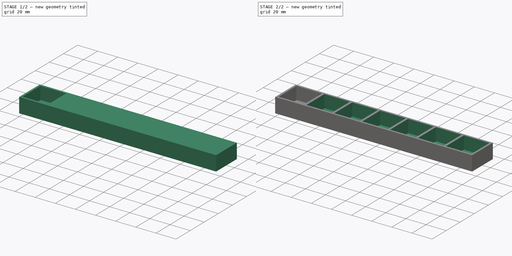
[diagram: build sequence overview — one tinted view per stage of 2, left to right]
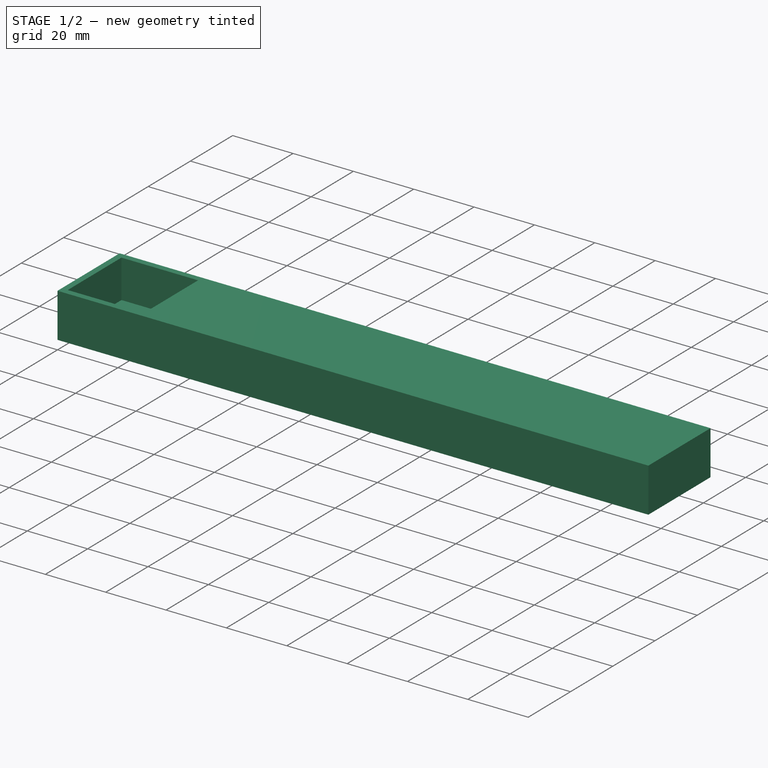
[diagram: stage 1 of 2 — iso view after this stage's code; geometry added in this stage tinted green]
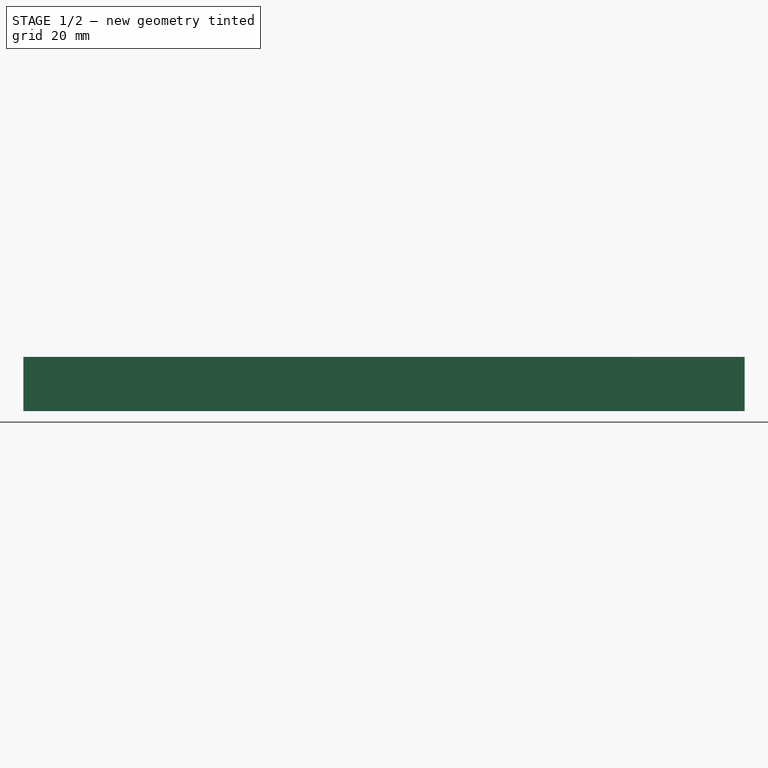
[diagram: stage 1 of 2 — front view after this stage's code; geometry added in this stage tinted green]
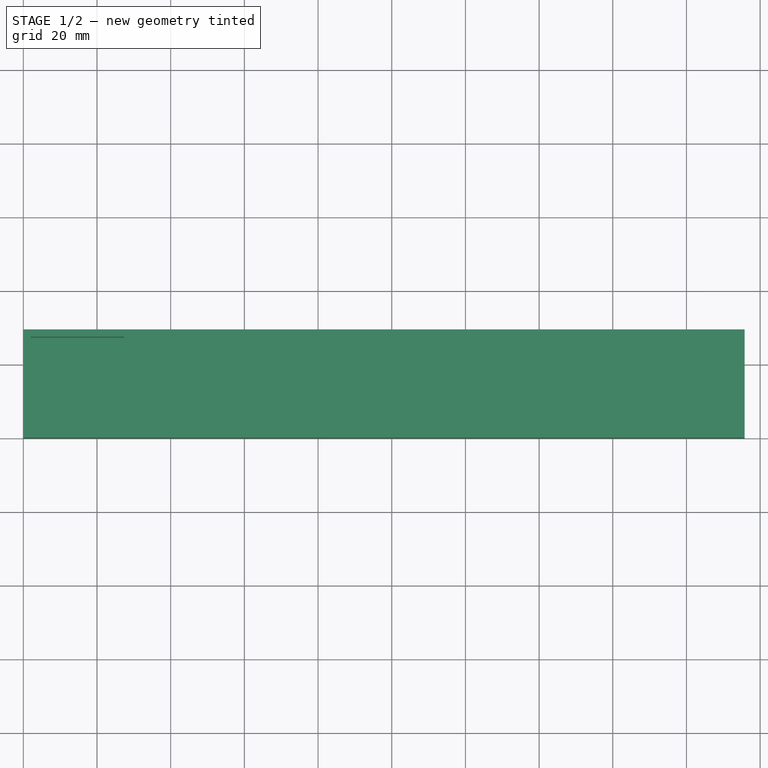
[diagram: stage 1 of 2 — top view after this stage's code; geometry added in this stage tinted green]
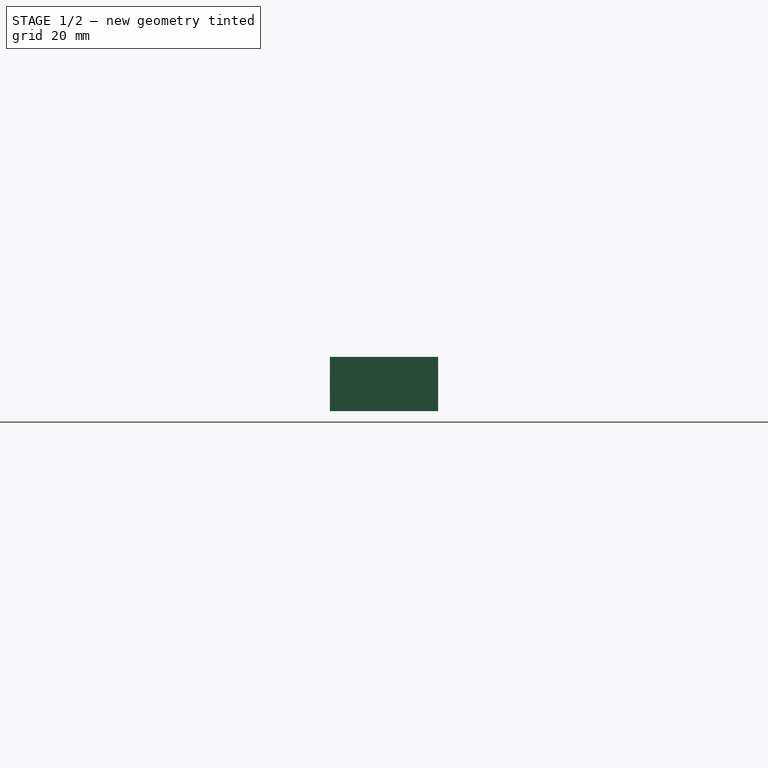
[diagram: stage 1 of 2 — right view after this stage's code; geometry added in this stage tinted green]
FCSTD DOCUMENT  (FreeCAD 2021.0301R23964 +3306 (Git))
Label: weekly_tray
License: All rights reserved
LicenseURL: http://en.wikipedia.org/wiki/All_rights_reserved
objects: Sketcher::SketchObject×2, Spreadsheet::Sheet×1, PartDesign::Pad×1, PartDesign::Pocket×1, PartDesign::LinearPattern×1, PartDesign::Body×1
note: 11 computed .brp shape members not serialized (recipe doc carries the construction recipe); baked Part::Feature solids carry a one-line shape summary decoded from their .brp

FEATURE [Spreadsheet::Sheet] Spreadsheet  label="wt_parameters"
  PythonMode = false
  cells = A1=depression qty; B1(dep_qty)=7; A2=depression depth; B2(dep_dep)==25.4 / 2; A3=depression width; B3(dep_wid)=25.4; A4=depression length; B4(dep_len)=25.4; A6=floor thick; B6(flo_thi)=2; A8=depression betweens; B8(dep_bet)=2; A9=depression perimeter; B9(dep_per)=2; A12=support for taper?; A14=total width; B14(tot_wid)==dep_per * 2 + dep_bet * dep_qty + dep_qty * dep_wid; C14='; A15=total length; B15(tot_len)==dep_per * 2 + dep_len; A16=total spread; B16(tot_spr)==dep_per + dep_bet * (dep_qty - 1) + (dep_qty - 1) * dep_wid
FEATURE [Sketcher::SketchObject] Sketch  label="perimeter"
  FullyConstrained = true
  MapMode = 5
  Support = -> [XY_Plane]
  expr: Constraints[8] = <<wt_parameters>>.tot_len
  expr: Constraints[9] = <<wt_parameters>>.tot_wid
  sketch-geometry (4):
    g0: LineSegment StartX=0 StartY=29.4 StartZ=0 EndX=195.8 EndY=29.4 EndZ=0
    g1: LineSegment StartX=195.8 StartY=29.4 StartZ=0 EndX=195.8 EndY=0 EndZ=0
    g2: LineSegment StartX=195.8 StartY=0 StartZ=0 EndX=0 EndY=0 EndZ=0
    g3: LineSegment StartX=0 StartY=0 StartZ=0 EndX=0 EndY=29.4 EndZ=0
  constraints (11):
    c: Coincident(g0,g1)
    c: Coincident(g1,g2)
    c: Coincident(g2,g3)
    c: Coincident(g3,g0)
    c: Horizontal(g0)
    c: Horizontal(g2)
    c: Vertical(g1)
    c: Vertical(g3)
    c: DistanceY(g3,g3) = 29.4
    c: DistanceX(g0,g0) = 195.8
    c: Coincident(g2,g-1)
FEATURE [Sketcher::SketchObject] Sketch001
  AttachmentOffset = pos=(0,0,14.7) rot=(0,0,1;0rad)
  FullyConstrained = true
  MapMode = 5
  Placement = pos=(0,0,14.7) rot=(0,0,1;0rad)
  Support = -> [XY_Plane]
  expr: .AttachmentOffset.Base.z = <<wt_parameters>>.dep_dep + <<wt_parameters>>.flo_thi
  expr: Constraints[10] = <<wt_parameters>>.dep_per
  expr: Constraints[11] = <<wt_parameters>>.dep_per
  expr: Constraints[8] = <<wt_parameters>>.dep_len
  expr: Constraints[9] = <<wt_parameters>>.dep_wid
  sketch-geometry (4):
    g0: LineSegment StartX=2 StartY=27.4 StartZ=0 EndX=27.4 EndY=27.4 EndZ=0
    g1: LineSegment StartX=27.4 StartY=27.4 StartZ=0 EndX=27.4 EndY=2 EndZ=0
    g2: LineSegment StartX=27.4 StartY=2 StartZ=0 EndX=2 EndY=2 EndZ=0
    g3: LineSegment StartX=2 StartY=2 StartZ=0 EndX=2 EndY=27.4 EndZ=0
  constraints (12):
    c: Coincident(g0,g1)
    c: Coincident(g1,g2)
    c: Coincident(g2,g3)
    c: Coincident(g3,g0)
    c: Horizontal(g0)
    c: Horizontal(g2)
    c: Vertical(g1)
    c: Vertical(g3)
    c: DistanceY(g3,g3) = 25.4
    c: DistanceX(g0,g0) = 25.4
    c: DistanceX(g-1,g2) = 2
    c: DistanceY(g-1,g2) = 2
FEATURE [PartDesign::Pad] Pad
  ClaimChildren = false
  Direction = (1,1,1)
  Fit = 0
  FitJoin = 0
  InnerFit = 0
  InnerFitJoin = 0
  InnerTaperAngle = 0
  InnerTaperAngleRev = 0
  Length = 14.7
  Length2 = 100
  NewSolid = false
  Profile = -> Sketch
  Suppress = false
  Type = 0
  expr: Length = <<wt_parameters>>.dep_dep + <<wt_parameters>>.flo_thi
FEATURE [PartDesign::Pocket] Pocket
  BaseFeature = -> Pad
  ClaimChildren = false
  Fit = 0
  FitJoin = 0
  InnerFit = 0
  InnerFitJoin = 0
  InnerTaperAngle = 0
  InnerTaperAngleRev = 0
  Length = 12.7
  Length2 = 100
  NewSolid = false
  Profile = -> Sketch001
  Suppress = false
  Type = 0
  expr: Length = <<wt_parameters>>.dep_dep
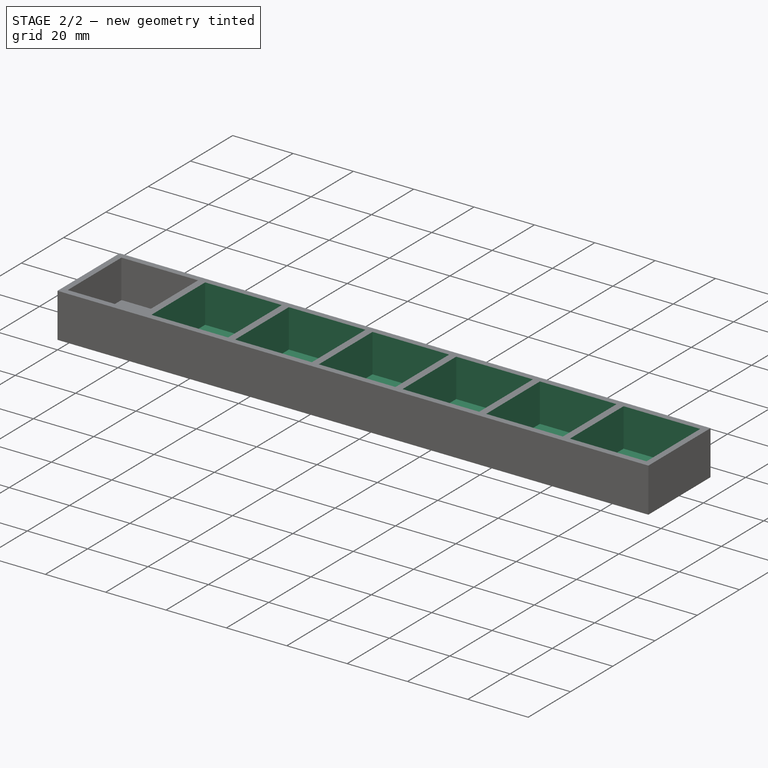
[diagram: stage 2 of 2 — iso view after this stage's code; geometry added in this stage tinted green]
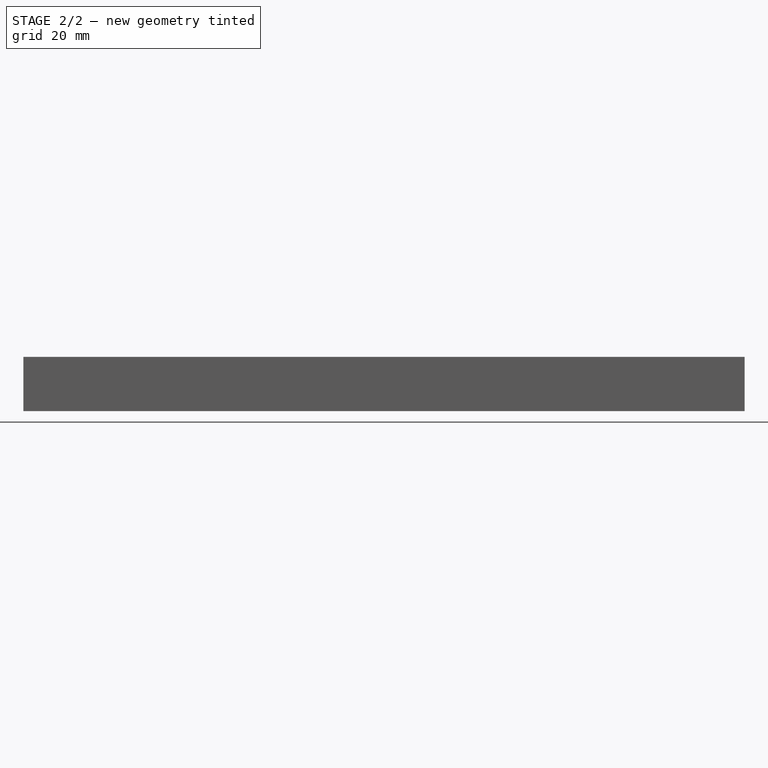
[diagram: stage 2 of 2 — front view after this stage's code; geometry added in this stage tinted green]
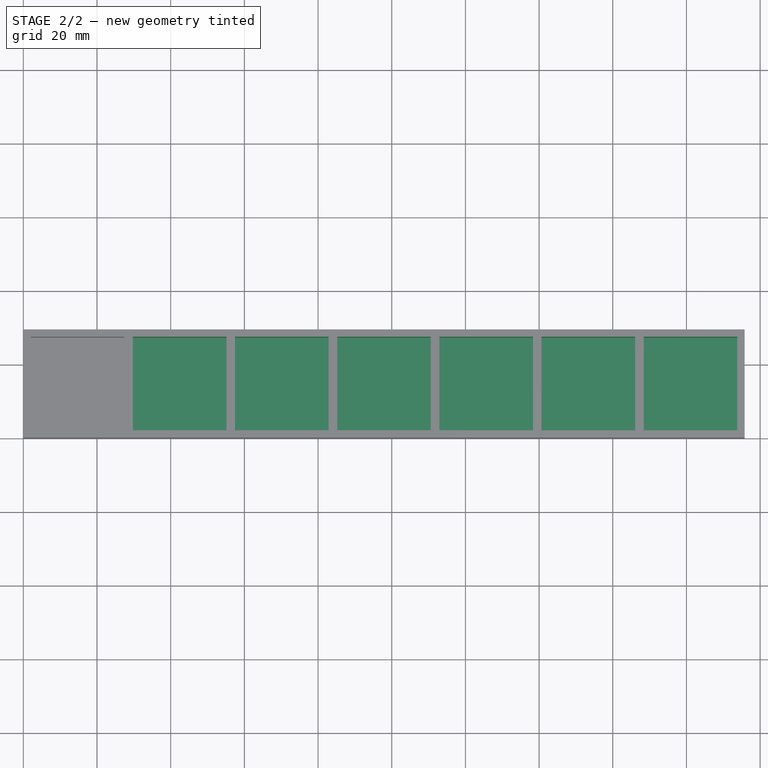
[diagram: stage 2 of 2 — top view after this stage's code; geometry added in this stage tinted green]
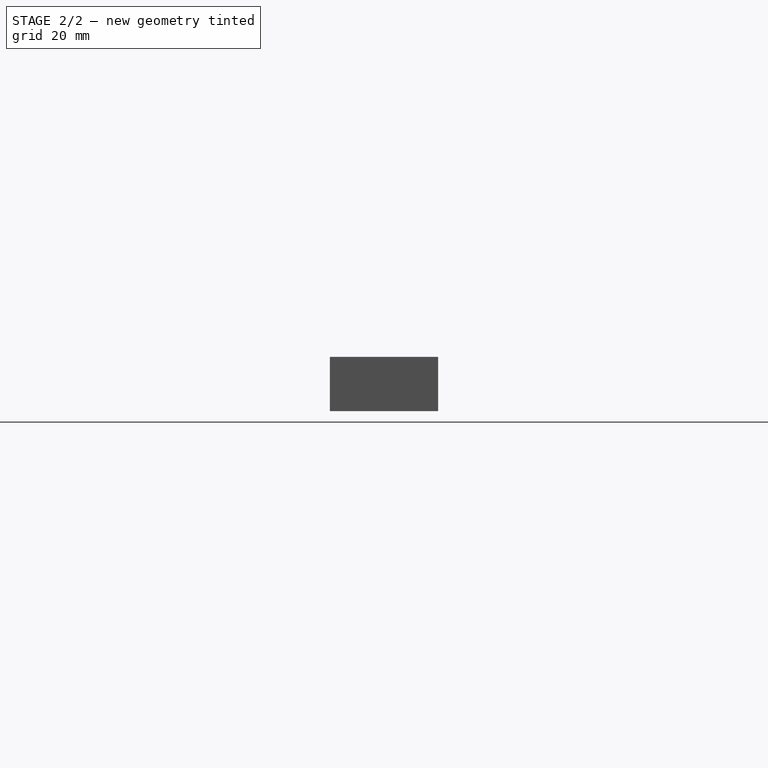
[diagram: stage 2 of 2 — right view after this stage's code; geometry added in this stage tinted green]
FEATURE [PartDesign::LinearPattern] LinearPattern
  BaseFeature = -> Pocket
  CopyShape = true
  Direction = -> Sketch001 [H_Axis]
  Length = 166.4
  NewSolid = false
  Occurrences = 7
  OriginalSubs = -> [Pocket]
  Originals = -> [Pocket]
  SubTransform = true
  Suppress = false
  expr: Length = <<wt_parameters>>.tot_spr
  expr: Occurrences = <<wt_parameters>>.dep_qty
FEATURE [PartDesign::Body] Body
  AutoGroupSolids = false
  ExportMode = 0
  Group = -> [Sketch,Sketch001,Pad,Pocket,LinearPattern]
  Origin = -> Origin
  Tip = -> LinearPattern
  _ExportChildren = -> [Pad,Pocket,LinearPattern]
  _GroupVersion = 1
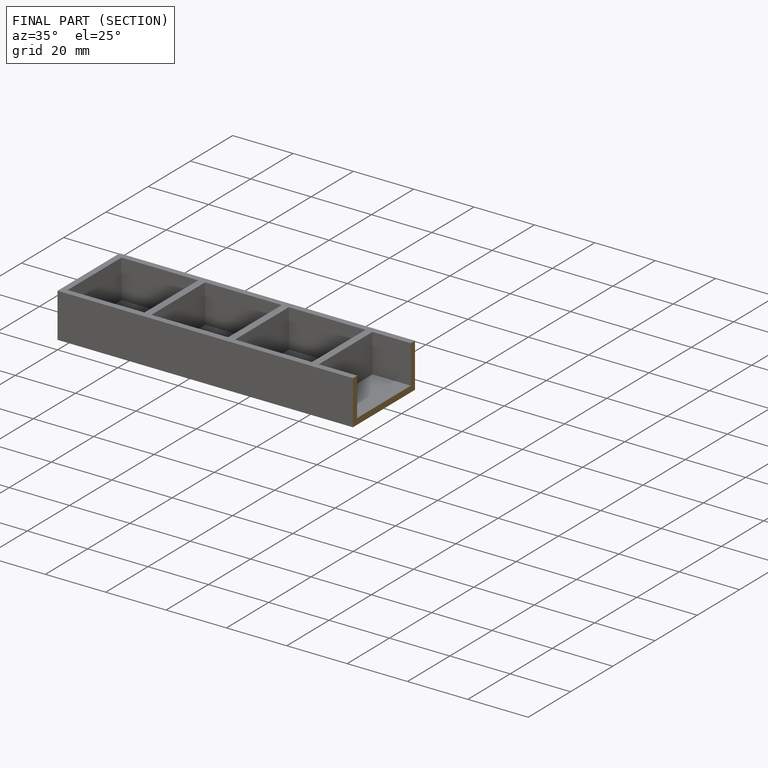
[diagram: finished part — half-section view (interior)]
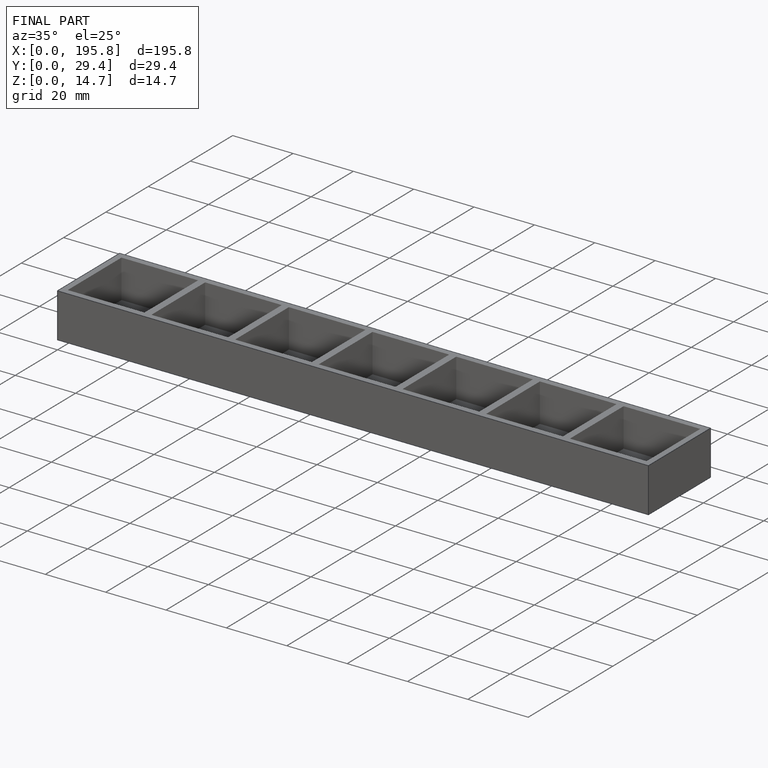
[diagram: finished part — iso view with bounding-box wireframe]
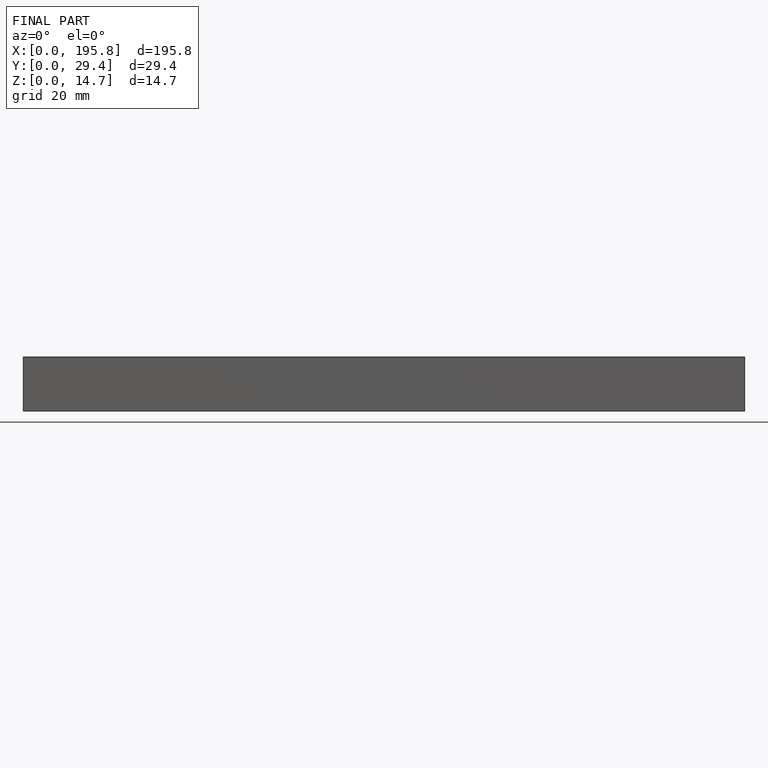
[diagram: finished part — front view with bounding-box wireframe]
